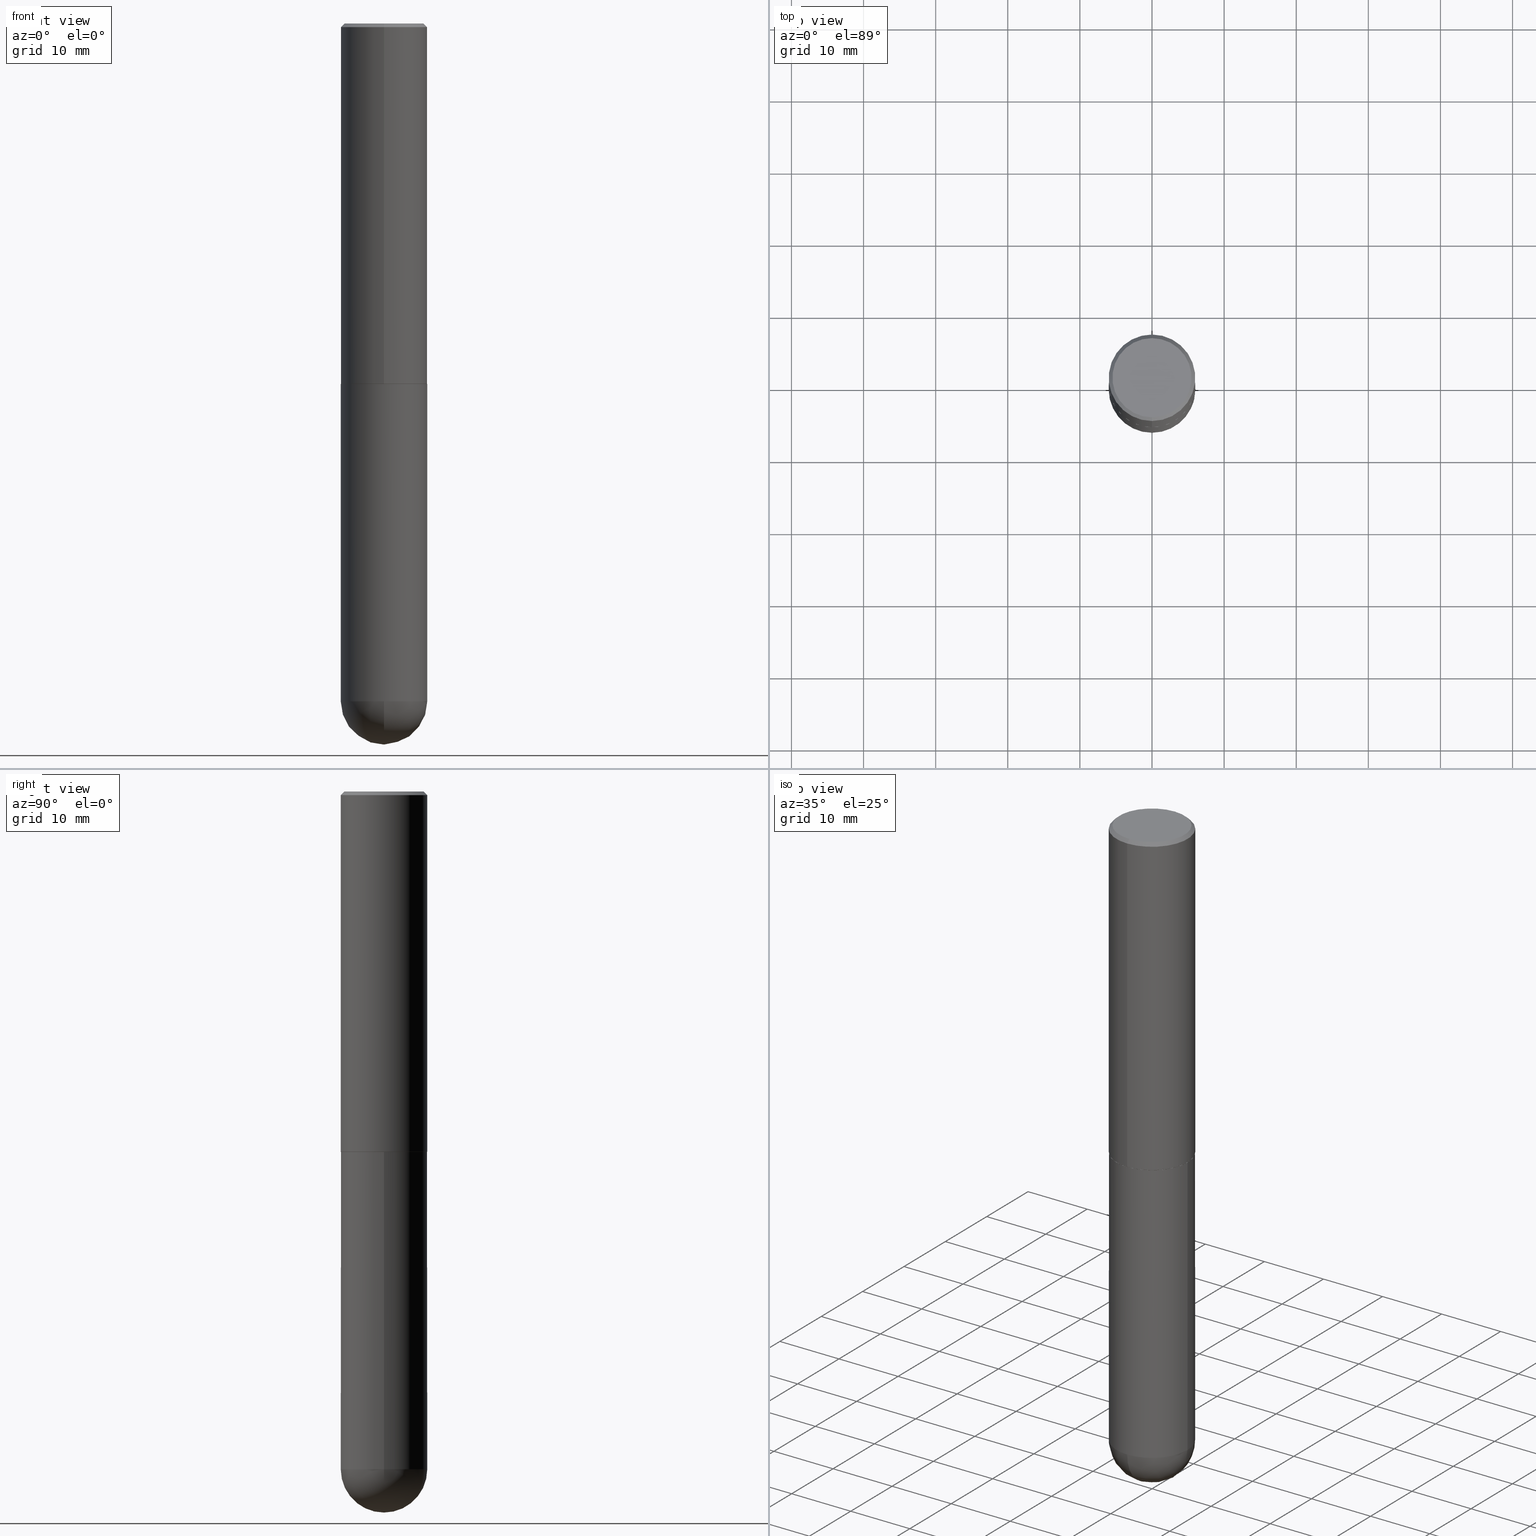
[diagram: canonical four-view strip — front | top / right | iso, engineering-drawing reading convention]
A machine part, canonical four-view strip (front | top / right | iso — engineering-drawing reading convention). The complete STEP part file that produces these views, byte-faithful:
ISO-10303-21;
HEADER;
FILE_DESCRIPTION (( 'STEP AP203' ),
    '1' );
FILE_NAME ('43336.STEP',
    '2024-04-10T11:43:09',
    ( '' ),
    ( '' ),
    'SwSTEP 2.0',
    'SolidWorks 2023',
    '' );
FILE_SCHEMA (( 'CONFIG_CONTROL_DESIGN' ));
ENDSEC;

DATA;
#1 = DIRECTION ( 'NONE',  ( 6.982962677686265922E-15, 1.000000000000000000, -3.487819265831411744E-15 ) ) ;
#2 = PRODUCT_RELATED_PRODUCT_CATEGORY ( 'detail', '', ( #232 ) ) ;
#3 = FACE_OUTER_BOUND ( 'NONE', #388, .T. ) ;
#4 = EDGE_CURVE ( 'NONE', #54, #133, #227, .T. ) ;
#5 = CARTESIAN_POINT ( 'NONE',  ( 1.678301941865381835E-15, 0.2361999999999933597, -1.967500000000001137 ) ) ;
#6 = ORIENTED_EDGE ( 'NONE', *, *, #222, .T. ) ;
#7 = CIRCLE ( 'NONE', #235, 0.2351999999999999924 ) ;
#8 = PLANE ( 'NONE',  #355 ) ;
#9 = SPHERICAL_SURFACE ( 'NONE', #144, 0.2362000000000002709 ) ;
#10 = EDGE_CURVE ( 'NONE', #305, #54, #308, .T. ) ;
#11 = CIRCLE ( 'NONE', #218, 0.2161999999999998090 ) ;
#12 = LINE ( 'NONE', #160, #273 ) ;
#13 = DIRECTION ( 'NONE',  ( 1.000000000000000000, -6.982962677686265133E-15, 0.000000000000000000 ) ) ;
#14 = ORIENTED_EDGE ( 'NONE', *, *, #120, .F. ) ;
#15 = CARTESIAN_POINT ( 'NONE',  ( 9.050190957929953666E-29, -1.292127413879071357E-14, -3.700800000000000090 ) ) ;
#16 = VERTEX_POINT ( 'NONE', #126 ) ;
#17 = ORIENTED_EDGE ( 'NONE', *, *, #149, .F. ) ;
#18 = CONICAL_SURFACE ( 'NONE', #257, 0.2361999999999999933, 0.7853981633974477239 ) ;
#19 = EDGE_CURVE ( 'NONE', #383, #106, #7, .T. ) ;
#20 = PERSON_AND_ORGANIZATION_ROLE ( 'creator' ) ;
#21 = SHAPE_DEFINITION_REPRESENTATION ( #82, #63 ) ;
#22 = CLOSED_SHELL ( 'NONE', ( #184, #283, #340, #374, #59 ) ) ;
#23 = APPLICATION_PROTOCOL_DEFINITION ( 'international standard', 'config_control_design', 1994, #196 ) ;
#24 = ORIENTED_EDGE ( 'NONE', *, *, #274, .F. ) ;
#25 = CC_DESIGN_PERSON_AND_ORGANIZATION_ASSIGNMENT ( #172, #20, ( #324 ) ) ;
#26 = CALENDAR_DATE ( 2024, 10, 4 ) ;
#27 = EDGE_CURVE ( 'NONE', #54, #305, #206, .T. ) ;
#28 = VECTOR ( 'NONE', #360, 39.37007874015748143 ) ;
#29 = LOCAL_TIME ( 7, 43, 9.000000000000000000, #119 ) ;
#30 = CARTESIAN_POINT ( 'NONE',  ( -1.551844647095919353E-15, -0.2161999999999998090, 9.263296666745015027E-16 ) ) ;
#31 = LOCAL_TIME ( 7, 43, 9.000000000000000000, #304 ) ;
#32 = DESIGN_CONTEXT ( 'detailed design', #196, 'design' ) ;
#33 = CARTESIAN_POINT ( 'NONE',  ( -1.620449627073635079E-15, -0.2362000000000000766, -0.01999999999999922673 ) ) ;
#34 = CYLINDRICAL_SURFACE ( 'NONE', #345, 0.2362000000000001043 ) ;
#35 = CARTESIAN_POINT ( 'NONE',  ( 4.811581814490893760E-29, -6.876308443413746847E-15, -1.968500000000000139 ) ) ;
#36 = CARTESIAN_POINT ( 'NONE',  ( 9.050190957929953666E-29, -1.292127413879071357E-14, -3.700800000000000090 ) ) ;
#37 = CIRCLE ( 'NONE', #114, 0.2361999999999999933 ) ;
#38 = DIRECTION ( 'NONE',  ( -2.444288450338274722E-29, 3.493171675597534541E-15, 1.000000000000000000 ) ) ;
#39 = EDGE_LOOP ( 'NONE', ( #217, #323, #88, #24 ) ) ;
#40 = CARTESIAN_POINT ( 'NONE',  ( -0.2361999999999999933, 1.678301941865356591E-15, -1.161852468318208757E-29 ) ) ;
#41 = ORIENTED_EDGE ( 'NONE', *, *, #27, .T. ) ;
#42 = CARTESIAN_POINT ( 'NONE',  ( 4.811581814490893760E-29, -6.876308443413746847E-15, -1.968500000000000139 ) ) ;
#43 = EDGE_LOOP ( 'NONE', ( #171, #357, #14, #51 ) ) ;
#44 = DIRECTION ( 'NONE',  ( -2.445468806185136597E-29, 3.491481338843145583E-15, 1.000000000000000000 ) ) ;
#45 = PLANE ( 'NONE',  #179 ) ;
#46 = PRODUCT_DEFINITION ( 'UNKNOWN', '', #324, #32 ) ;
#47 = CARTESIAN_POINT ( 'NONE',  ( 4.888576900676561635E-31, -6.986343351195086880E-17, -0.02000000000000005246 ) ) ;
#48 = AXIS2_PLACEMENT_3D ( 'NONE', #35, #280, #271 ) ;
#49 = VECTOR ( 'NONE', #391, 39.37007874015748854 ) ;
#50 = COORDINATED_UNIVERSAL_TIME_OFFSET ( 5, 0, .BEHIND. ) ;
#51 = ORIENTED_EDGE ( 'NONE', *, *, #78, .F. ) ;
#52 = PERSON_AND_ORGANIZATION_ROLE ( 'design_supplier' ) ;
#53 = ADVANCED_FACE ( 'NONE', ( #377 ), #247, .F. ) ;
#54 = VERTEX_POINT ( 'NONE', #251 ) ;
#55 = APPROVAL_ROLE ( '' ) ;
#56 = VERTEX_POINT ( 'NONE', #347 ) ;
#57 = DATE_AND_TIME ( #141, #62 ) ;
#58 = PERSON_AND_ORGANIZATION ( #302, #386 ) ;
#59 = ADVANCED_FACE ( 'NONE', ( #346 ), #378, .T. ) ;
#60 = AXIS2_PLACEMENT_3D ( 'NONE', #95, #375, #153 ) ;
#61 = DIRECTION ( 'NONE',  ( 6.982962677686265922E-15, 1.000000000000000000, -3.493171675597534541E-15 ) ) ;
#62 = LOCAL_TIME ( 7, 43, 9.000000000000000000, #87 ) ;
#63 = ADVANCED_BREP_SHAPE_REPRESENTATION ( '43336', ( #250, #110, #245 ), #276 ) ;
#64 = LINE ( 'NONE', #212, #370 ) ;
#65 = DIRECTION ( 'NONE',  ( 1.000000000000000000, -6.982962677686266711E-15, 4.876176775795936353E-29 ) ) ;
#66 = DIRECTION ( 'NONE',  ( -4.937700262165559362E-15, -0.7071067811866899033, 0.7071067811864050201 ) ) ;
#67 = DIRECTION ( 'NONE',  ( -6.982962677686265133E-15, -1.000000000000000000, 3.484499991918703113E-15 ) ) ;
#68 = DIRECTION ( 'NONE',  ( -6.982962677686265922E-15, -1.000000000000000000, 3.487819265831411744E-15 ) ) ;
#69 = CIRCLE ( 'NONE', #140, 0.2361999999999999933 ) ;
#70 = ADVANCED_FACE ( 'NONE', ( #317 ), #209, .T. ) ;
#71 = FACE_OUTER_BOUND ( 'NONE', #150, .T. ) ;
#72 = CARTESIAN_POINT ( 'NONE',  ( 0.2361999999999999933, -1.649375784469496131E-15, 1.151752954443000088E-29 ) ) ;
#73 = DIRECTION ( 'NONE',  ( -4.851104656540961119E-15, -0.7071067811865495711, -0.7071067811865454633 ) ) ;
#74 = CARTESIAN_POINT ( 'NONE',  ( 8.719071180016067419E-29, -1.339545650693076387E-14, -3.700800000000000090 ) ) ;
#75 = MECHANICAL_CONTEXT ( 'NONE', #256, 'mechanical' ) ;
#76 = CC_DESIGN_PERSON_AND_ORGANIZATION_ASSIGNMENT ( #237, #79, ( #199 ) ) ;
#77 = FACE_OUTER_BOUND ( 'NONE', #328, .T. ) ;
#78 = EDGE_CURVE ( 'NONE', #270, #56, #364, .T. ) ;
#79 = PERSON_AND_ORGANIZATION_ROLE ( 'classification_officer' ) ;
#80 = CIRCLE ( 'NONE', #310, 0.2362000000000002709 ) ;
#81 = ORIENTED_EDGE ( 'NONE', *, *, #332, .F. ) ;
#82 = PRODUCT_DEFINITION_SHAPE ( 'NONE', 'NONE',  #46 ) ;
#83 = CC_DESIGN_APPROVAL ( #343, ( #199 ) ) ;
#84 = ADVANCED_FACE ( 'NONE', ( #380 ), #379, .T. ) ;
#85 = ORIENTED_EDGE ( 'NONE', *, *, #365, .F. ) ;
#86 = DIRECTION ( 'NONE',  ( 6.982962677686265922E-15, 1.000000000000000000, -4.626330217890364603E-15 ) ) ;
#87 = COORDINATED_UNIVERSAL_TIME_OFFSET ( 5, 0, .BEHIND. ) ;
#88 = ORIENTED_EDGE ( 'NONE', *, *, #4, .T. ) ;
#89 = CARTESIAN_POINT ( 'NONE',  ( 1.649375784469585666E-15, 0.2361999999999869759, -3.700800000000000978 ) ) ;
#90 = ORIENTED_EDGE ( 'NONE', *, *, #265, .T. ) ;
#91 = CARTESIAN_POINT ( 'NONE',  ( 0.000000000000000000, 0.000000000000000000, 0.000000000000000000 ) ) ;
#92 = AXIS2_PLACEMENT_3D ( 'NONE', #385, #188, #321 ) ;
#93 = DIRECTION ( 'NONE',  ( 1.000000000000000000, -6.982962677686265133E-15, 0.000000000000000000 ) ) ;
#94 = APPROVAL ( #268, 'UNSPECIFIED' ) ;
#95 = CARTESIAN_POINT ( 'NONE',  ( 4.809137526040556277E-29, -6.872815271738149679E-15, -1.967500000000000249 ) ) ;
#96 = CARTESIAN_POINT ( 'NONE',  ( 4.811581814490893760E-29, -6.876308443413746847E-15, -1.968500000000000139 ) ) ;
#97 = LINE ( 'NONE', #282, #49 ) ;
#98 = CARTESIAN_POINT ( 'NONE',  ( 1.579546157692632833E-15, 0.2161999999999998090, -5.841177658538709538E-16 ) ) ;
#99 = CIRCLE ( 'NONE', #121, 0.2361999999999999933 ) ;
#100 = DIRECTION ( 'NONE',  ( 2.444288450338274722E-29, -3.493171675597534541E-15, -1.000000000000000000 ) ) ;
#101 = APPROVAL_PERSON_ORGANIZATION ( #112, #382, #55 ) ;
#102 = DIRECTION ( 'NONE',  ( -1.000000000000000000, 6.982962677686265922E-15, -4.883557194083112901E-29 ) ) ;
#103 = CARTESIAN_POINT ( 'NONE',  ( -1.649375784469496722E-15, -0.2362000000000001043, 8.250871497761379229E-16 ) ) ;
#104 = DIRECTION ( 'NONE',  ( -6.982962677686265133E-15, -1.000000000000000000, 3.484499991918703113E-15 ) ) ;
#105 = CARTESIAN_POINT ( 'NONE',  ( 1.678301941865357183E-15, 0.2362000000000001043, -8.250871497761379229E-16 ) ) ;
#106 = VERTEX_POINT ( 'NONE', #312 ) ;
#107 = DIRECTION ( 'NONE',  ( 1.000000000000000000, -6.982962677686266711E-15, 4.876176775795936353E-29 ) ) ;
#108 = DIRECTION ( 'NONE',  ( -2.444288450338274722E-29, 3.493171675597534541E-15, 1.000000000000000000 ) ) ;
#109 = CARTESIAN_POINT ( 'NONE',  ( 1.649375784469496525E-15, 0.2361999999999999378, -0.02000000000000087472 ) ) ;
#110 = MANIFOLD_SOLID_BREP ( 'Body-Move/Copy2[2]', #402 ) ;
#111 = PERSON_AND_ORGANIZATION ( #302, #386 ) ;
#112 = PERSON_AND_ORGANIZATION ( #302, #386 ) ;
#113 = CC_DESIGN_APPROVAL ( #94, ( #324 ) ) ;
#114 = AXIS2_PLACEMENT_3D ( 'NONE', #216, #376, #208 ) ;
#115 = CALENDAR_DATE ( 2024, 10, 4 ) ;
#116 = EDGE_LOOP ( 'NONE', ( #192, #405, #138, #263 ) ) ;
#117 = ORIENTED_EDGE ( 'NONE', *, *, #19, .T. ) ;
#118 = DIRECTION ( 'NONE',  ( -2.444288450338274722E-29, 3.493171675597534541E-15, 1.000000000000000000 ) ) ;
#119 = COORDINATED_UNIVERSAL_TIME_OFFSET ( 5, 0, .BEHIND. ) ;
#120 = EDGE_CURVE ( 'NONE', #56, #284, #281, .T. ) ;
#121 = AXIS2_PLACEMENT_3D ( 'NONE', #266, #289, #13 ) ;
#122 = EDGE_CURVE ( 'NONE', #195, #161, #249, .T. ) ;
#123 = AXIS2_PLACEMENT_3D ( 'NONE', #352, #159, #93 ) ;
#124 = DIRECTION ( 'NONE',  ( 2.444288450338274442E-29, -3.493171675597534541E-15, -1.000000000000000000 ) ) ;
#125 = CARTESIAN_POINT ( 'NONE',  ( 4.811581814490893760E-29, -6.876308443413746847E-15, -1.968500000000000139 ) ) ;
#126 = CARTESIAN_POINT ( 'NONE',  ( 1.649375784469496525E-15, 0.2361999999999999378, -0.02000000000000087472 ) ) ;
#127 = CARTESIAN_POINT ( 'NONE',  ( 0.000000000000000000, 0.000000000000000000, 0.000000000000000000 ) ) ;
#128 = ADVANCED_FACE ( 'NONE', ( #71 ), #8, .F. ) ;
#129 = ORIENTED_EDGE ( 'NONE', *, *, #351, .F. ) ;
#130 = VECTOR ( 'NONE', #213, 39.37007874015748143 ) ;
#131 = AXIS2_PLACEMENT_3D ( 'NONE', #182, #260, #86 ) ;
#132 =( LENGTH_UNIT ( ) NAMED_UNIT ( * ) SI_UNIT ( $, .METRE. ) );
#133 = VERTEX_POINT ( 'NONE', #33 ) ;
#134 = SPHERICAL_SURFACE ( 'NONE', #131, 0.2362000000000002709 ) ;
#135 = DIRECTION ( 'NONE',  ( -1.000000000000000000, 6.982962677686265922E-15, -4.876176775795935793E-29 ) ) ;
#136 = ORIENTED_EDGE ( 'NONE', *, *, #233, .F. ) ;
#137 = DIRECTION ( 'NONE',  ( 2.444288450338274722E-29, -3.493171675597534541E-15, -1.000000000000000000 ) ) ;
#138 = ORIENTED_EDGE ( 'NONE', *, *, #156, .T. ) ;
#139 = DIRECTION ( 'NONE',  ( 2.438088387897960049E-29, -3.491481338843145188E-15, -1.000000000000000000 ) ) ;
#140 = AXIS2_PLACEMENT_3D ( 'NONE', #349, #252, #68 ) ;
#141 = CALENDAR_DATE ( 2024, 10, 4 ) ;
#142 = EDGE_CURVE ( 'NONE', #290, #146, #210, .T. ) ;
#143 = ORIENTED_EDGE ( 'NONE', *, *, #78, .T. ) ;
#144 = AXIS2_PLACEMENT_3D ( 'NONE', #197, #102, #261 ) ;
#145 = ORIENTED_EDGE ( 'NONE', *, *, #19, .F. ) ;
#146 = VERTEX_POINT ( 'NONE', #30 ) ;
#147 = DIMENSIONAL_EXPONENTS ( 1.000000000000000000, 0.000000000000000000, 0.000000000000000000, 0.000000000000000000, 0.000000000000000000, 0.000000000000000000, 0.000000000000000000 ) ;
#148 = CC_DESIGN_APPROVAL ( #382, ( #46 ) ) ;
#149 = EDGE_CURVE ( 'NONE', #133, #16, #37, .T. ) ;
#150 = EDGE_LOOP ( 'NONE', ( #407, #275 ) ) ;
#151 = ADVANCED_FACE ( 'NONE', ( #342 ), #34, .T. ) ;
#152 = AXIS2_PLACEMENT_3D ( 'NONE', #96, #319, #285 ) ;
#153 = DIRECTION ( 'NONE',  ( -6.982962677686265133E-15, -1.000000000000000000, 3.469747663417773847E-15 ) ) ;
#154 = CARTESIAN_POINT ( 'NONE',  ( 0.000000000000000000, 0.000000000000000000, 0.000000000000000000 ) ) ;
#155 = CARTESIAN_POINT ( 'NONE',  ( 4.888576900676561635E-31, -6.986343351195086880E-17, -0.02000000000000005246 ) ) ;
#156 = EDGE_CURVE ( 'NONE', #383, #54, #64, .T. ) ;
#157 = AXIS2_PLACEMENT_3D ( 'NONE', #36, #341, #384 ) ;
#158 = ORIENTED_EDGE ( 'NONE', *, *, #4, .F. ) ;
#159 = DIRECTION ( 'NONE',  ( -2.445468806185136597E-29, 3.491481338843145583E-15, 1.000000000000000000 ) ) ;
#160 = CARTESIAN_POINT ( 'NONE',  ( -1.620449627073635079E-15, -0.2362000000000000766, -0.01999999999999922673 ) ) ;
#161 = VERTEX_POINT ( 'NONE', #348 ) ;
#162 = AXIS2_PLACEMENT_3D ( 'NONE', #322, #194, #392 ) ;
#163 = FACE_OUTER_BOUND ( 'NONE', #394, .T. ) ;
#164 = ORIENTED_EDGE ( 'NONE', *, *, #156, .F. ) ;
#165 = ORIENTED_EDGE ( 'NONE', *, *, #27, .F. ) ;
#166 = DIRECTION ( 'NONE',  ( -1.000000000000000000, 7.105427357601001070E-15, -4.926315508542082329E-29 ) ) ;
#167 = DIRECTION ( 'NONE',  ( -2.444288450338274442E-29, 3.493171675597534541E-15, 1.000000000000000000 ) ) ;
#168 = VECTOR ( 'NONE', #329, 39.37007874015748143 ) ;
#169 = ORIENTED_EDGE ( 'NONE', *, *, #205, .T. ) ;
#170 = PERSON_AND_ORGANIZATION ( #302, #386 ) ;
#171 = ORIENTED_EDGE ( 'NONE', *, *, #205, .F. ) ;
#172 = PERSON_AND_ORGANIZATION ( #302, #386 ) ;
#173 = EDGE_LOOP ( 'NONE', ( #298, #301, #242, #229 ) ) ;
#174 = DATE_AND_TIME ( #240, #178 ) ;
#175 = EDGE_CURVE ( 'NONE', #161, #200, #193, .T. ) ;
#176 = ADVANCED_FACE ( 'NONE', ( #77 ), #316, .T. ) ;
#177 = COORDINATED_UNIVERSAL_TIME_OFFSET ( 5, 0, .BEHIND. ) ;
#178 = LOCAL_TIME ( 7, 43, 9.000000000000000000, #177 ) ;
#179 = AXIS2_PLACEMENT_3D ( 'NONE', #253, #139, #135 ) ;
#180 = CARTESIAN_POINT ( 'NONE',  ( -4.182322983720872700E-45, 5.977024594995098565E-31, 1.711059504103153238E-16 ) ) ;
#181 = DIRECTION ( 'NONE',  ( -2.444288450338274722E-29, 3.493171675597534541E-15, 1.000000000000000000 ) ) ;
#182 = CARTESIAN_POINT ( 'NONE',  ( 8.719071180016067419E-29, -1.339545650693076387E-14, -3.700800000000000090 ) ) ;
#183 = ORIENTED_EDGE ( 'NONE', *, *, #313, .F. ) ;
#184 = ADVANCED_FACE ( 'NONE', ( #163 ), #358, .T. ) ;
#185 = DIRECTION ( 'NONE',  ( -2.444288450338274722E-29, 3.493171675597534541E-15, 1.000000000000000000 ) ) ;
#186 = DIRECTION ( 'NONE',  ( 1.000000000000000000, -6.982962677686269077E-15, 0.000000000000000000 ) ) ;
#187 = LENGTH_MEASURE_WITH_UNIT ( LENGTH_MEASURE( 0.02539999999999999897 ), #132 );
#188 = DIRECTION ( 'NONE',  ( 1.000000000000000000, -6.982962677686265922E-15, 4.883557194083112340E-29 ) ) ;
#189 = CC_DESIGN_DATE_AND_TIME_ASSIGNMENT ( #174, #243, ( #199 ) ) ;
#190 = ORIENTED_EDGE ( 'NONE', *, *, #278, .F. ) ;
#191 = APPLICATION_PROTOCOL_DEFINITION ( 'international standard', 'config_control_design', 1994, #256 ) ;
#192 = ORIENTED_EDGE ( 'NONE', *, *, #265, .F. ) ;
#193 = CIRCLE ( 'NONE', #288, 0.2361999999999999933 ) ;
#194 = DIRECTION ( 'NONE',  ( -2.445468806185136597E-29, 3.491481338843145583E-15, 1.000000000000000000 ) ) ;
#195 = VERTEX_POINT ( 'NONE', #228 ) ;
#196 = APPLICATION_CONTEXT ( 'configuration controlled 3d designs of mechanical parts and assemblies' ) ;
#197 = CARTESIAN_POINT ( 'NONE',  ( 8.719071180016067419E-29, -1.339545650693076387E-14, -3.700800000000000090 ) ) ;
#198 = SECURITY_CLASSIFICATION_LEVEL ( 'unclassified' ) ;
#199 = SECURITY_CLASSIFICATION ( '', '', #198 ) ;
#200 = VERTEX_POINT ( 'NONE', #361 ) ;
#201 = APPROVAL_DATE_TIME ( #371, #343 ) ;
#202 = CC_DESIGN_PERSON_AND_ORGANIZATION_ASSIGNMENT ( #111, #203, ( #232 ) ) ;
#203 = PERSON_AND_ORGANIZATION_ROLE ( 'design_owner' ) ;
#204 = ORIENTED_EDGE ( 'NONE', *, *, #175, .T. ) ;
#205 = EDGE_CURVE ( 'NONE', #330, #270, #80, .T. ) ;
#206 = CIRCLE ( 'NONE', #60, 0.2362000000000002153 ) ;
#207 = DIRECTION ( 'NONE',  ( -6.982962677686265922E-15, -1.000000000000000000, 3.493171675597534146E-15 ) ) ;
#208 = DIRECTION ( 'NONE',  ( -6.982962677686265922E-15, -1.000000000000000000, 3.487819265831411744E-15 ) ) ;
#209 = CYLINDRICAL_SURFACE ( 'NONE', #231, 0.2362000000000001043 ) ;
#210 = CIRCLE ( 'NONE', #307, 0.2161999999999998090 ) ;
#211 = DIRECTION ( 'NONE',  ( -2.445468806185136597E-29, 3.491481338843145583E-15, 1.000000000000000000 ) ) ;
#212 = CARTESIAN_POINT ( 'NONE',  ( -1.642392821791761602E-15, -0.2352000000000068480, -1.968499999999999250 ) ) ;
#213 = DIRECTION ( 'NONE',  ( 4.937700262164544887E-15, 0.7071067811865446862, -0.7071067811865503483 ) ) ;
#214 = DIRECTION ( 'NONE',  ( -2.445468806185136877E-29, 3.491481338843145188E-15, 1.000000000000000000 ) ) ;
#215 = DIRECTION ( 'NONE',  ( -6.982962677686265922E-15, -1.000000000000000000, 3.493171675597534146E-15 ) ) ;
#216 = CARTESIAN_POINT ( 'NONE',  ( 4.888576900676561635E-31, -6.986343351195086880E-17, -0.02000000000000005246 ) ) ;
#217 = ORIENTED_EDGE ( 'NONE', *, *, #389, .F. ) ;
#218 = AXIS2_PLACEMENT_3D ( 'NONE', #408, #118, #410 ) ;
#219 = AXIS2_PLACEMENT_3D ( 'NONE', #42, #108, #226 ) ;
#220 = CARTESIAN_POINT ( 'NONE',  ( 4.813905344975441835E-29, -6.872981015512731707E-15, -1.968500000000000139 ) ) ;
#221 = DIRECTION ( 'NONE',  ( 6.982962677686265922E-15, 1.000000000000000000, -3.487819265831411744E-15 ) ) ;
#222 = EDGE_CURVE ( 'NONE', #290, #16, #398, .T. ) ;
#223 = CARTESIAN_POINT ( 'NONE',  ( -1.678301941865268633E-15, -0.2362000000000132882, -3.700799999999998757 ) ) ;
#224 = FACE_OUTER_BOUND ( 'NONE', #43, .T. ) ;
#225 = ORIENTED_EDGE ( 'NONE', *, *, #274, .T. ) ;
#226 = DIRECTION ( 'NONE',  ( -6.982962677686265133E-15, -1.000000000000000000, 3.484499991918703113E-15 ) ) ;
#227 = LINE ( 'NONE', #103, #28 ) ;
#228 = CARTESIAN_POINT ( 'NONE',  ( -0.2361999999999999933, -8.218825635286368613E-15, -3.700800000000000090 ) ) ;
#229 = ORIENTED_EDGE ( 'NONE', *, *, #222, .F. ) ;
#230 = FACE_OUTER_BOUND ( 'NONE', #363, .T. ) ;
#231 = AXIS2_PLACEMENT_3D ( 'NONE', #315, #38, #207 ) ;
#232 = PRODUCT ( '43336', '43336', '', ( #75 ) ) ;
#233 = EDGE_CURVE ( 'NONE', #106, #383, #296, .T. ) ;
#234 = PERSON_AND_ORGANIZATION ( #302, #386 ) ;
#235 = AXIS2_PLACEMENT_3D ( 'NONE', #125, #181, #67 ) ;
#236 = CC_DESIGN_SECURITY_CLASSIFICATION ( #199, ( #324 ) ) ;
#237 = PERSON_AND_ORGANIZATION ( #302, #386 ) ;
#238 = ORIENTED_EDGE ( 'NONE', *, *, #351, .T. ) ;
#239 = EDGE_CURVE ( 'NONE', #146, #290, #11, .T. ) ;
#240 = CALENDAR_DATE ( 2024, 10, 4 ) ;
#241 = ORIENTED_EDGE ( 'NONE', *, *, #175, .F. ) ;
#242 = ORIENTED_EDGE ( 'NONE', *, *, #149, .T. ) ;
#243 = DATE_TIME_ROLE ( 'classification_date' ) ;
#244 = ORIENTED_EDGE ( 'NONE', *, *, #122, .T. ) ;
#245 = AXIS2_PLACEMENT_3D ( 'NONE', #127, #396, #362 ) ;
#246 = CARTESIAN_POINT ( 'NONE',  ( 1.509716530915769337E-15, 0.2161999999999998090, -6.696707410590285664E-16 ) ) ;
#247 = PLANE ( 'NONE',  #152 ) ;
#248 = AXIS2_PLACEMENT_3D ( 'NONE', #155, #100, #1 ) ;
#249 = LINE ( 'NONE', #40, #400 ) ;
#250 = MANIFOLD_SOLID_BREP ( 'Body-Move/Copy2[1]', #22 ) ;
#251 = CARTESIAN_POINT ( 'NONE',  ( -1.649375784469449391E-15, -0.2362000000000070710, -1.967499999999999361 ) ) ;
#252 = DIRECTION ( 'NONE',  ( -2.444288450338274722E-29, 3.493171675597534541E-15, 1.000000000000000000 ) ) ;
#253 = CARTESIAN_POINT ( 'NONE',  ( 1.649375784469544054E-15, 0.2361999999999931377, -1.968500000000000805 ) ) ;
#254 = ORIENTED_EDGE ( 'NONE', *, *, #313, .T. ) ;
#255 = APPROVAL_PERSON_ORGANIZATION ( #373, #343, #300 ) ;
#256 = APPLICATION_CONTEXT ( 'configuration controlled 3d designs of mechanical parts and assemblies' ) ;
#257 = AXIS2_PLACEMENT_3D ( 'NONE', #47, #137, #221 ) ;
#258 = DIRECTION ( 'NONE',  ( -2.444288450338274722E-29, 3.493171675597534541E-15, 1.000000000000000000 ) ) ;
#259 =( NAMED_UNIT ( * ) SI_UNIT ( $, .STERADIAN. ) SOLID_ANGLE_UNIT ( ) );
#260 = DIRECTION ( 'NONE',  ( -1.000000000000000000, 6.982962677686265922E-15, -4.883557194083112901E-29 ) ) ;
#261 = DIRECTION ( 'NONE',  ( 6.982962677686265922E-15, 1.000000000000000000, -4.626330217890364603E-15 ) ) ;
#262 = ORIENTED_EDGE ( 'NONE', *, *, #365, .T. ) ;
#263 = ORIENTED_EDGE ( 'NONE', *, *, #10, .F. ) ;
#264 = DIRECTION ( 'NONE',  ( -7.105427357601001070E-15, -1.000000000000000000, 0.000000000000000000 ) ) ;
#265 = EDGE_CURVE ( 'NONE', #106, #305, #97, .T. ) ;
#266 = CARTESIAN_POINT ( 'NONE',  ( 9.050190957929953666E-29, -1.292127413879071357E-14, -3.700800000000000090 ) ) ;
#267 = APPROVAL_STATUS ( 'not_yet_approved' ) ;
#268 = APPROVAL_STATUS ( 'not_yet_approved' ) ;
#269 = ORIENTED_EDGE ( 'NONE', *, *, #142, .F. ) ;
#270 = VERTEX_POINT ( 'NONE', #223 ) ;
#271 = DIRECTION ( 'NONE',  ( -6.982962677686265133E-15, -1.000000000000000000, 3.484499991918703113E-15 ) ) ;
#272 = ORIENTED_EDGE ( 'NONE', *, *, #299, .F. ) ;
#273 = VECTOR ( 'NONE', #73, 39.37007874015748143 ) ;
#274 = EDGE_CURVE ( 'NONE', #16, #133, #69, .T. ) ;
#275 = ORIENTED_EDGE ( 'NONE', *, *, #239, .T. ) ;
#276 =( GEOMETRIC_REPRESENTATION_CONTEXT ( 3 ) GLOBAL_UNCERTAINTY_ASSIGNED_CONTEXT ( ( #309 ) ) GLOBAL_UNIT_ASSIGNED_CONTEXT ( ( #399, #356, #259 ) ) REPRESENTATION_CONTEXT ( 'NONE', 'WORKASPACE' ) );
#277 = DIRECTION ( 'NONE',  ( -2.444288450338274722E-29, 3.493171675597534541E-15, 1.000000000000000000 ) ) ;
#278 = EDGE_CURVE ( 'NONE', #330, #284, #344, .T. ) ;
#279 = DIRECTION ( 'NONE',  ( -6.982962677686265133E-15, -1.000000000000000000, 3.469747663417773847E-15 ) ) ;
#280 = DIRECTION ( 'NONE',  ( -2.444288450338274722E-29, 3.493171675597534541E-15, 1.000000000000000000 ) ) ;
#281 = CIRCLE ( 'NONE', #123, 0.2361999999999999933 ) ;
#282 = CARTESIAN_POINT ( 'NONE',  ( 1.671196514507803309E-15, 0.2351999999999931368, -1.968500000000000805 ) ) ;
#283 = ADVANCED_FACE ( 'NONE', ( #3 ), #134, .T. ) ;
#284 = VERTEX_POINT ( 'NONE', #89 ) ;
#285 = DIRECTION ( 'NONE',  ( -6.982962677686265922E-15, -1.000000000000000000, 3.493171675597534541E-15 ) ) ;
#286 = CARTESIAN_POINT ( 'NONE',  ( 4.811581814490893760E-29, -6.876308443413746847E-15, -1.968500000000000139 ) ) ;
#287 = LINE ( 'NONE', #72, #168 ) ;
#288 = AXIS2_PLACEMENT_3D ( 'NONE', #220, #44, #186 ) ;
#289 = DIRECTION ( 'NONE',  ( -2.445468806185136597E-29, 3.491481338843145583E-15, 1.000000000000000000 ) ) ;
#290 = VERTEX_POINT ( 'NONE', #98 ) ;
#291 = CARTESIAN_POINT ( 'NONE',  ( 0.000000000000000000, 0.000000000000000000, 0.000000000000000000 ) ) ;
#292 = LINE ( 'NONE', #105, #372 ) ;
#293 = EDGE_LOOP ( 'NONE', ( #318, #238, #143, #254, #241 ) ) ;
#294 = FACE_OUTER_BOUND ( 'NONE', #116, .T. ) ;
#295 = EDGE_LOOP ( 'NONE', ( #272, #269, #6, #225 ) ) ;
#296 = CIRCLE ( 'NONE', #48, 0.2351999999999999924 ) ;
#297 = PERSON_AND_ORGANIZATION_ROLE ( 'creator' ) ;
#298 = ORIENTED_EDGE ( 'NONE', *, *, #239, .F. ) ;
#299 = EDGE_CURVE ( 'NONE', #146, #133, #12, .T. ) ;
#300 = APPROVAL_ROLE ( '' ) ;
#301 = ORIENTED_EDGE ( 'NONE', *, *, #299, .T. ) ;
#302 = PERSON ( 'UNSPECIFIED', 'UNSPECIFIED', 'UNSPECIFIED', ('UNSPECIFIED'), ('UNSPECIFIED'), ('UNSPECIFIED') ) ;
#303 = EDGE_LOOP ( 'NONE', ( #145, #136 ) ) ;
#304 = COORDINATED_UNIVERSAL_TIME_OFFSET ( 5, 0, .BEHIND. ) ;
#305 = VERTEX_POINT ( 'NONE', #5 ) ;
#306 = APPROVAL_DATE_TIME ( #57, #94 ) ;
#307 = AXIS2_PLACEMENT_3D ( 'NONE', #180, #277, #412 ) ;
#308 = CIRCLE ( 'NONE', #366, 0.2362000000000002153 ) ;
#309 = UNCERTAINTY_MEASURE_WITH_UNIT (LENGTH_MEASURE( 1.000000000000000082E-05 ), #399, 'distance_accuracy_value', 'NONE');
#310 = AXIS2_PLACEMENT_3D ( 'NONE', #74, #166, #264 ) ;
#311 = AXIS2_PLACEMENT_3D ( 'NONE', #291, #395, #107 ) ;
#312 = CARTESIAN_POINT ( 'NONE',  ( 1.674749228186604602E-15, 0.2351999999999931368, -1.968500000000000805 ) ) ;
#313 = EDGE_CURVE ( 'NONE', #56, #200, #287, .T. ) ;
#314 = DIRECTION ( 'NONE',  ( -2.444288450338274722E-29, 3.493171675597534541E-15, 1.000000000000000000 ) ) ;
#315 = CARTESIAN_POINT ( 'NONE',  ( 0.000000000000000000, 0.000000000000000000, 0.000000000000000000 ) ) ;
#316 = CONICAL_SURFACE ( 'NONE', #369, 0.2351999999999999924, 0.7853981633976532262 ) ;
#317 = FACE_OUTER_BOUND ( 'NONE', #39, .T. ) ;
#318 = ORIENTED_EDGE ( 'NONE', *, *, #122, .F. ) ;
#319 = DIRECTION ( 'NONE',  ( -2.444288450338274442E-29, 3.493171675597534541E-15, 1.000000000000000000 ) ) ;
#320 = FACE_OUTER_BOUND ( 'NONE', #295, .T. ) ;
#321 = DIRECTION ( 'NONE',  ( 6.982962677686265922E-15, 1.000000000000000000, 0.000000000000000000 ) ) ;
#322 = CARTESIAN_POINT ( 'NONE',  ( 4.813905344975441835E-29, -6.872981015512731707E-15, -1.968500000000000139 ) ) ;
#323 = ORIENTED_EDGE ( 'NONE', *, *, #10, .T. ) ;
#324 = PRODUCT_DEFINITION_FORMATION_WITH_SPECIFIED_SOURCE ( 'ANY', '', #232, .NOT_KNOWN. ) ;
#325 = CC_DESIGN_PERSON_AND_ORGANIZATION_ASSIGNMENT ( #58, #297, ( #46 ) ) ;
#326 = AXIS2_PLACEMENT_3D ( 'NONE', #91, #211, #65 ) ;
#327 = DIRECTION ( 'NONE',  ( 1.000000000000000000, -6.982962677686265133E-15, 0.000000000000000000 ) ) ;
#328 = EDGE_LOOP ( 'NONE', ( #117, #90, #165, #164 ) ) ;
#329 = DIRECTION ( 'NONE',  ( -2.445468806185136877E-29, 3.491481338843145188E-15, 1.000000000000000000 ) ) ;
#330 = VERTEX_POINT ( 'NONE', #387 ) ;
#331 = AXIS2_PLACEMENT_3D ( 'NONE', #15, #393, #327 ) ;
#332 = EDGE_CURVE ( 'NONE', #200, #161, #409, .T. ) ;
#333 = LOCAL_TIME ( 7, 43, 9.000000000000000000, #50 ) ;
#334 = APPROVAL_DATE_TIME ( #339, #382 ) ;
#335 = ORIENTED_EDGE ( 'NONE', *, *, #120, .T. ) ;
#336 = ORIENTED_EDGE ( 'NONE', *, *, #389, .T. ) ;
#337 = DATE_AND_TIME ( #115, #333 ) ;
#338 = CC_DESIGN_DATE_AND_TIME_ASSIGNMENT ( #337, #406, ( #46 ) ) ;
#339 = DATE_AND_TIME ( #367, #29 ) ;
#340 = ADVANCED_FACE ( 'NONE', ( #224 ), #9, .T. ) ;
#341 = DIRECTION ( 'NONE',  ( -2.445468806185136597E-29, 3.491481338843145583E-15, 1.000000000000000000 ) ) ;
#342 = FACE_OUTER_BOUND ( 'NONE', #368, .T. ) ;
#343 = APPROVAL ( #267, 'UNSPECIFIED' ) ;
#344 = CIRCLE ( 'NONE', #92, 0.2362000000000002709 ) ;
#345 = AXIS2_PLACEMENT_3D ( 'NONE', #154, #314, #215 ) ;
#346 = FACE_OUTER_BOUND ( 'NONE', #293, .T. ) ;
#347 = CARTESIAN_POINT ( 'NONE',  ( 0.2361999999999999933, -1.154650336162122153E-14, -3.700800000000000090 ) ) ;
#348 = CARTESIAN_POINT ( 'NONE',  ( -0.2361999999999999933, -8.218825635286365458E-15, -1.968500000000000139 ) ) ;
#349 = CARTESIAN_POINT ( 'NONE',  ( 4.888576900676561635E-31, -6.986343351195086880E-17, -0.02000000000000005246 ) ) ;
#350 = CIRCLE ( 'NONE', #331, 0.2361999999999999933 ) ;
#351 = EDGE_CURVE ( 'NONE', #195, #270, #99, .T. ) ;
#352 = CARTESIAN_POINT ( 'NONE',  ( 9.050190957929953666E-29, -1.292127413879071357E-14, -3.700800000000000090 ) ) ;
#353 = CARTESIAN_POINT ( 'NONE',  ( -1.642392821791761602E-15, -0.2352000000000068480, -1.968499999999999250 ) ) ;
#354 = CARTESIAN_POINT ( 'NONE',  ( 4.809137526040556277E-29, -6.872815271738149679E-15, -1.967500000000000249 ) ) ;
#355 = AXIS2_PLACEMENT_3D ( 'NONE', #246, #124, #61 ) ;
#356 =( NAMED_UNIT ( * ) PLANE_ANGLE_UNIT ( ) SI_UNIT ( $, .RADIAN. ) );
#357 = ORIENTED_EDGE ( 'NONE', *, *, #278, .T. ) ;
#358 = CYLINDRICAL_SURFACE ( 'NONE', #311, 0.2361999999999999933 ) ;
#359 = CC_DESIGN_PERSON_AND_ORGANIZATION_ASSIGNMENT ( #234, #52, ( #324 ) ) ;
#360 = DIRECTION ( 'NONE',  ( -2.444288450338274442E-29, 3.493171675597534541E-15, 1.000000000000000000 ) ) ;
#361 = CARTESIAN_POINT ( 'NONE',  ( 0.2361999999999999933, -8.522356799982228232E-15, -1.968500000000000139 ) ) ;
#362 = DIRECTION ( 'NONE',  ( 1.000000000000000000, 0.000000000000000000, 0.000000000000000000 ) ) ;
#363 = EDGE_LOOP ( 'NONE', ( #397, #204 ) ) ;
#364 = CIRCLE ( 'NONE', #157, 0.2361999999999999933 ) ;
#365 = EDGE_CURVE ( 'NONE', #284, #195, #350, .T. ) ;
#366 = AXIS2_PLACEMENT_3D ( 'NONE', #354, #185, #279 ) ;
#367 = CALENDAR_DATE ( 2024, 10, 4 ) ;
#368 = EDGE_LOOP ( 'NONE', ( #41, #336, #17, #158 ) ) ;
#369 = AXIS2_PLACEMENT_3D ( 'NONE', #286, #258, #104 ) ;
#370 = VECTOR ( 'NONE', #66, 39.37007874015748854 ) ;
#371 = DATE_AND_TIME ( #26, #31 ) ;
#372 = VECTOR ( 'NONE', #167, 39.37007874015748143 ) ;
#373 = PERSON_AND_ORGANIZATION ( #302, #386 ) ;
#374 = ADVANCED_FACE ( 'NONE', ( #230 ), #45, .F. ) ;
#375 = DIRECTION ( 'NONE',  ( -2.444288450338274722E-29, 3.493171675597534541E-15, 1.000000000000000000 ) ) ;
#376 = DIRECTION ( 'NONE',  ( -2.444288450338274722E-29, 3.493171675597534541E-15, 1.000000000000000000 ) ) ;
#377 = FACE_OUTER_BOUND ( 'NONE', #303, .T. ) ;
#378 = CYLINDRICAL_SURFACE ( 'NONE', #326, 0.2361999999999999933 ) ;
#379 = CONICAL_SURFACE ( 'NONE', #248, 0.2361999999999999933, 0.7853981633974477239 ) ;
#380 = FACE_OUTER_BOUND ( 'NONE', #173, .T. ) ;
#381 = ADVANCED_FACE ( 'NONE', ( #320 ), #18, .T. ) ;
#382 = APPROVAL ( #404, 'UNSPECIFIED' ) ;
#383 = VERTEX_POINT ( 'NONE', #353 ) ;
#384 = DIRECTION ( 'NONE',  ( 1.000000000000000000, -6.982962677686265133E-15, 0.000000000000000000 ) ) ;
#385 = CARTESIAN_POINT ( 'NONE',  ( 8.719071180016067419E-29, -1.339545650693076387E-14, -3.700800000000000090 ) ) ;
#386 = ORGANIZATION ( 'UNSPECIFIED', 'UNSPECIFIED', '' ) ;
#387 = CARTESIAN_POINT ( 'NONE',  ( 9.306790425912204830E-29, -1.420568132046758614E-14, -3.937000000000000277 ) ) ;
#388 = EDGE_LOOP ( 'NONE', ( #190, #169, #129, #85 ) ) ;
#389 = EDGE_CURVE ( 'NONE', #305, #16, #292, .T. ) ;
#390 = APPROVAL_PERSON_ORGANIZATION ( #170, #94, #403 ) ;
#391 = DIRECTION ( 'NONE',  ( 5.024295867789091064E-15, 0.7071067811866947883, 0.7071067811864001351 ) ) ;
#392 = DIRECTION ( 'NONE',  ( 1.000000000000000000, -6.982962677686269077E-15, 0.000000000000000000 ) ) ;
#393 = DIRECTION ( 'NONE',  ( -2.445468806185136597E-29, 3.491481338843145583E-15, 1.000000000000000000 ) ) ;
#394 = EDGE_LOOP ( 'NONE', ( #262, #244, #81, #183, #335 ) ) ;
#395 = DIRECTION ( 'NONE',  ( -2.445468806185136597E-29, 3.491481338843145583E-15, 1.000000000000000000 ) ) ;
#396 = DIRECTION ( 'NONE',  ( 0.000000000000000000, 0.000000000000000000, 1.000000000000000000 ) ) ;
#397 = ORIENTED_EDGE ( 'NONE', *, *, #332, .T. ) ;
#398 = LINE ( 'NONE', #109, #130 ) ;
#399 =( CONVERSION_BASED_UNIT ( 'INCH', #187 ) LENGTH_UNIT ( ) NAMED_UNIT ( #147 ) );
#400 = VECTOR ( 'NONE', #214, 39.37007874015748143 ) ;
#401 = ADVANCED_FACE ( 'NONE', ( #294 ), #411, .T. ) ;
#402 = CLOSED_SHELL ( 'NONE', ( #176, #151, #84, #381, #70, #401, #53, #128 ) ) ;
#403 = APPROVAL_ROLE ( '' ) ;
#404 = APPROVAL_STATUS ( 'not_yet_approved' ) ;
#405 = ORIENTED_EDGE ( 'NONE', *, *, #233, .T. ) ;
#406 = DATE_TIME_ROLE ( 'creation_date' ) ;
#407 = ORIENTED_EDGE ( 'NONE', *, *, #142, .T. ) ;
#408 = CARTESIAN_POINT ( 'NONE',  ( -4.182322983720872700E-45, 5.977024594995098565E-31, 1.711059504103153238E-16 ) ) ;
#409 = CIRCLE ( 'NONE', #162, 0.2361999999999999933 ) ;
#410 = DIRECTION ( 'NONE',  ( -6.982962677686265922E-15, -1.000000000000000000, 3.493171675597534146E-15 ) ) ;
#411 = CONICAL_SURFACE ( 'NONE', #219, 0.2351999999999999924, 0.7853981633976532262 ) ;
#412 = DIRECTION ( 'NONE',  ( -6.982962677686265922E-15, -1.000000000000000000, 3.493171675597534146E-15 ) ) ;
ENDSEC;
END-ISO-10303-21;
